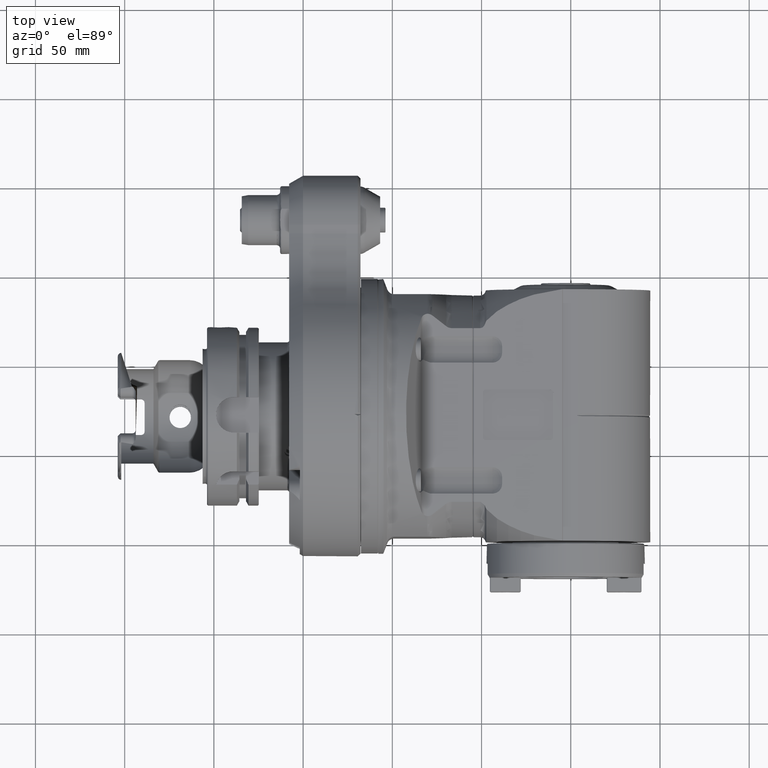
[diagram: clean part render]
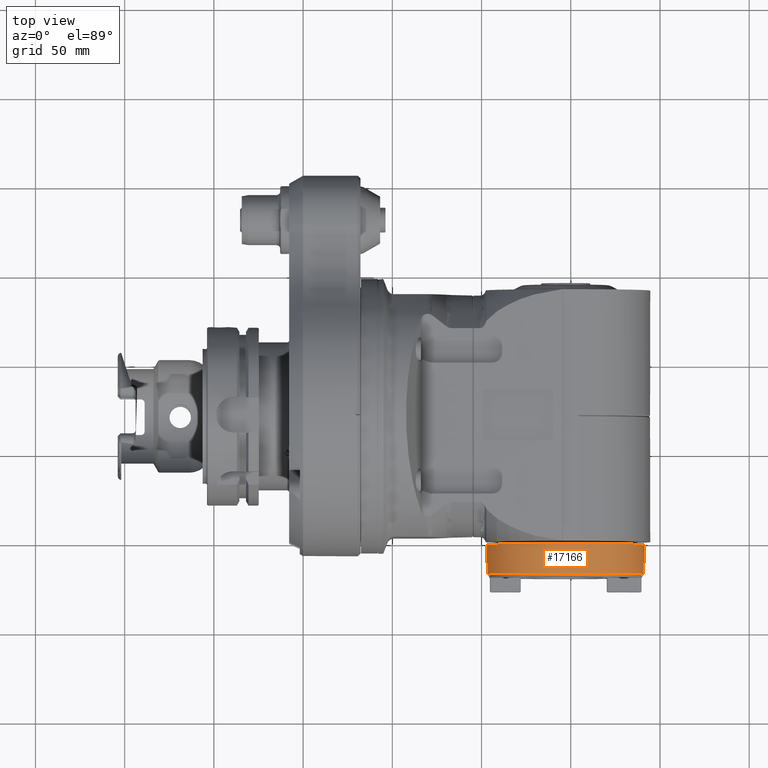
[diagram: same view with one face highlighted and labeled with its STEP entity id]
A machine part, top view. The second image highlights one B-rep face of the part: STEP entity #17166.
In plain terms, the highlighted cylindrical surface (bore or boss wall) has radius 44.441 mm, axis along (0, 1, 0).
Its self-contained STEP definition (entity closure, byte-faithful):
#2147=FACE_OUTER_BOUND('',#3197,.T.);
#3197=EDGE_LOOP('',(#15151,#15152,#15153,#15154,#15155,#15156,#15157,#15158,
#15159,#15160,#15161,#15162,#15163));
#4254=LINE('',#43109,#5561);
#4255=LINE('',#43113,#5562);
#4256=LINE('',#43117,#5563);
#4257=LINE('',#43121,#5564);
#4258=LINE('',#43125,#5565);
#5561=VECTOR('',#23239,44.441);
#5562=VECTOR('',#23242,6.);
#5563=VECTOR('',#23245,6.);
#5564=VECTOR('',#23248,6.);
#5565=VECTOR('',#23251,6.);
#6691=CIRCLE('',#18964,44.441);
#6692=CIRCLE('',#18965,44.441);
#6693=CIRCLE('',#18967,44.441);
#6694=CIRCLE('',#18968,44.441);
#6695=CIRCLE('',#18969,44.441);
#6696=CIRCLE('',#18970,44.441);
#6697=CIRCLE('',#18971,44.441);
#8081=VERTEX_POINT('',#43102);
#8082=VERTEX_POINT('',#43103);
#8083=VERTEX_POINT('',#43108);
#8084=VERTEX_POINT('',#43110);
#8085=VERTEX_POINT('',#43112);
#8086=VERTEX_POINT('',#43114);
#8087=VERTEX_POINT('',#43116);
#8088=VERTEX_POINT('',#43118);
#8089=VERTEX_POINT('',#43120);
#8090=VERTEX_POINT('',#43122);
#8091=VERTEX_POINT('',#43124);
#10540=EDGE_CURVE('',#8081,#8082,#6691,.T.);
#10542=EDGE_CURVE('',#8082,#8081,#6692,.T.);
#10543=EDGE_CURVE('',#8081,#8083,#4254,.T.);
#10544=EDGE_CURVE('',#8084,#8083,#6693,.T.);
#10545=EDGE_CURVE('',#8084,#8085,#4255,.T.);
#10546=EDGE_CURVE('',#8086,#8085,#6694,.T.);
#10547=EDGE_CURVE('',#8086,#8087,#4256,.T.);
#10548=EDGE_CURVE('',#8088,#8087,#6695,.T.);
#10549=EDGE_CURVE('',#8088,#8089,#4257,.T.);
#10550=EDGE_CURVE('',#8090,#8089,#6696,.T.);
#10551=EDGE_CURVE('',#8090,#8091,#4258,.T.);
#10552=EDGE_CURVE('',#8083,#8091,#6697,.T.);
#15151=ORIENTED_EDGE('',*,*,#10540,.F.);
#15152=ORIENTED_EDGE('',*,*,#10543,.T.);
#15153=ORIENTED_EDGE('',*,*,#10544,.F.);
#15154=ORIENTED_EDGE('',*,*,#10545,.T.);
#15155=ORIENTED_EDGE('',*,*,#10546,.F.);
#15156=ORIENTED_EDGE('',*,*,#10547,.T.);
#15157=ORIENTED_EDGE('',*,*,#10548,.F.);
#15158=ORIENTED_EDGE('',*,*,#10549,.T.);
#15159=ORIENTED_EDGE('',*,*,#10550,.F.);
#15160=ORIENTED_EDGE('',*,*,#10551,.T.);
#15161=ORIENTED_EDGE('',*,*,#10552,.F.);
#15162=ORIENTED_EDGE('',*,*,#10543,.F.);
#15163=ORIENTED_EDGE('',*,*,#10542,.F.);
#16323=CYLINDRICAL_SURFACE('',#18966,44.441);
#17166=ADVANCED_FACE('',(#2147),#16323,.T.);
#18964=AXIS2_PLACEMENT_3D('',#43104,#23232,#23233);
#18965=AXIS2_PLACEMENT_3D('',#43106,#23235,#23236);
#18966=AXIS2_PLACEMENT_3D('',#43107,#23237,#23238);
#18967=AXIS2_PLACEMENT_3D('',#43111,#23240,#23241);
#18968=AXIS2_PLACEMENT_3D('',#43115,#23243,#23244);
#18969=AXIS2_PLACEMENT_3D('',#43119,#23246,#23247);
#18970=AXIS2_PLACEMENT_3D('',#43123,#23249,#23250);
#18971=AXIS2_PLACEMENT_3D('',#43126,#23252,#23253);
#23232=DIRECTION('center_axis',(0.,1.,4.660711456794E-9));
#23233=DIRECTION('ref_axis',(7.031056759589E-9,-4.660711456794E-9,1.));
#23235=DIRECTION('center_axis',(0.,1.,4.660711456794E-9));
#23236=DIRECTION('ref_axis',(7.031056759589E-9,-4.660711456794E-9,1.));
#23237=DIRECTION('center_axis',(0.,1.,4.660711712401E-9));
#23238=DIRECTION('ref_axis',(7.031056736828E-9,-4.660711712401E-9,1.));
#23239=DIRECTION('',(0.,-1.,-4.660711712401E-9));
#23240=DIRECTION('center_axis',(0.,-1.,-4.660711708262E-9));
#23241=DIRECTION('ref_axis',(-0.983869288499349,8.33749390154464E-10,-0.178888856969309));
#23242=DIRECTION('',(0.,1.,4.660712556633E-9));
#23243=DIRECTION('center_axis',(0.,-1.,-4.660711712401E-9));
#23244=DIRECTION('ref_axis',(-0.983869285983792,-8.33749455377181E-10,0.178888870804598));
#23245=DIRECTION('',(0.,-1.,-4.660713000722E-9));
#23246=DIRECTION('center_axis',(0.,-1.,-4.660711549532E-9));
#23247=DIRECTION('ref_axis',(0.983869288499349,-8.33749361759435E-10,0.178888856969309));
#23248=DIRECTION('',(0.,1.,4.660716997525E-9));
#23249=DIRECTION('center_axis',(0.,-1.,-4.660711712401E-9));
#23250=DIRECTION('ref_axis',(0.983869285983792,8.33749455377181E-10,-0.178888870804598));
#23251=DIRECTION('',(0.,-1.,-4.660710040127E-9));
#23252=DIRECTION('center_axis',(0.,-1.,-4.660711708262E-9));
#23253=DIRECTION('ref_axis',(-0.983869288499349,8.33749390154464E-10,-0.178888856969309));
#43102=CARTESIAN_POINT('',(92.99999968753,-71.99999979287,-44.44100033557));
#43103=CARTESIAN_POINT('',(93.0000003124672,-72.0000002071267,44.4409996644288));
#43104=CARTESIAN_POINT('Origin',(93.,-72.,-3.355712039777E-7));
#43106=CARTESIAN_POINT('Origin',(93.,-72.,-3.355712039777E-7));
#43107=CARTESIAN_POINT('Origin',(93.,-80.,-3.728569026862E-7));
#43108=CARTESIAN_POINT('',(92.9999996875328,-88.499999792876,-44.441000412473));
#43109=CARTESIAN_POINT('',(92.9999996875328,-79.9999997928733,-44.4410003728569));
#43110=CARTESIAN_POINT('',(49.2758649498,-88.49999996295,-7.950000105046));
#43111=CARTESIAN_POINT('Origin',(93.,-88.5,-4.12472944905E-7));
#43112=CARTESIAN_POINT('',(49.2758649498,-82.49999996295,-7.950000077082));
#43113=CARTESIAN_POINT('',(49.2758649498,-88.49999996295,-7.950000105046));
#43114=CARTESIAN_POINT('',(49.27586506159,-82.50000003705,7.949999922918));
#43115=CARTESIAN_POINT('Origin',(93.,-82.5,-3.845086819672E-7));
#43116=CARTESIAN_POINT('',(49.27586506159,-88.50000003705,7.949999894954));
#43117=CARTESIAN_POINT('',(49.27586506159,-82.50000003705,7.949999922918));
#43118=CARTESIAN_POINT('',(136.7241350502,-88.50000003705,7.9499992801));
#43119=CARTESIAN_POINT('Origin',(93.,-88.5,-4.124729571231E-7));
#43120=CARTESIAN_POINT('',(136.7241350502,-82.50000003705,7.949999308064));
#43121=CARTESIAN_POINT('',(136.7241350502,-88.50000003705,7.9499992801));
#43122=CARTESIAN_POINT('',(136.7241349384,-82.49999996295,-7.950000691936));
#43123=CARTESIAN_POINT('Origin',(93.,-82.5,-3.845086819672E-7));
#43124=CARTESIAN_POINT('',(136.7241349384,-88.49999996295,-7.9500007199));
#43125=CARTESIAN_POINT('',(136.7241349384,-82.49999996295,-7.950000691936));
#43126=CARTESIAN_POINT('Origin',(93.,-88.5,-4.12472944905E-7));